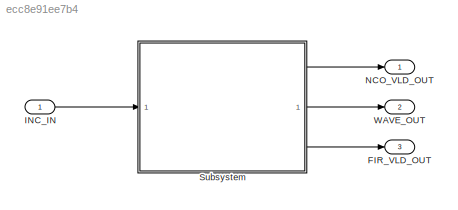
MODEL slx_ecc8e91ee7b4
KIND model
CONFIG AbsTol = auto
CONFIG EnableMultiTasking = off
CONFIG FixedStep = auto
CONFIG MaxStep = auto
CONFIG MinStep = auto
CONFIG RelTol = 1e-3
CONFIG SampleTimeConstraint = Unconstrained
CONFIG SolverName = VariableStepAuto
CONFIG StartTime = 0.0
CONFIG StopTime = 10.0
BLOCK [Outport] FIR_VLD_OUT
  Port = 3
  SampleTime = 0.001
  VectorParamsAs1DForOutWhenUnconnected = off
BLOCK [Inport] INC_IN
  OutDataTypeStr = uint32
  PortDimensions = 1
  SampleTime = 0.001
BLOCK [Outport] NCO_VLD_OUT
  SampleTime = 0.001
  VectorParamsAs1DForOutWhenUnconnected = off
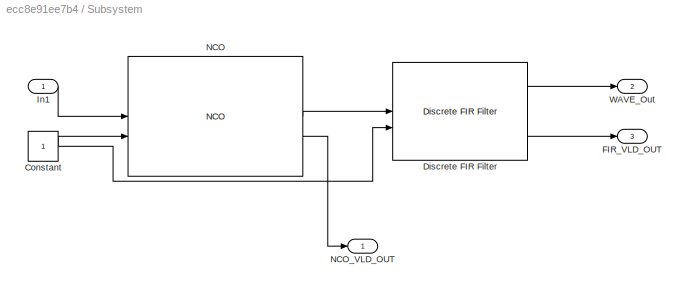
BLOCK [SubSystem] Subsystem
BLOCK [Constant] Subsystem/Constant
  OutDataTypeStr = boolean
  SampleTime = 0.001
BLOCK [Reference] Subsystem/Discrete FIR Filter  REF=dsphdlfiltering2/Discrete FIR Filter
  SourceBlock = dsphdlfiltering2/Discrete FIR Filter
  SourceType = Discrete FIR Filter
BLOCK [Outport] Subsystem/FIR_VLD_OUT
  Port = 3
  SampleTime = 0.001
  VectorParamsAs1DForOutWhenUnconnected = off
BLOCK [Inport] Subsystem/In1
  OutDataTypeStr = uint32
  PortDimensions = 1
  SampleTime = 0.001
BLOCK [Reference] Subsystem/NCO  REF=dsphdlsigops2/NCO
  LibrarySourceBlock = dsphdlsrcs2/NCO
  SourceBlock = dsphdlsigops2/NCO
  SourceType = NCO
BLOCK [Outport] Subsystem/NCO_VLD_OUT
  SampleTime = 0.001
  VectorParamsAs1DForOutWhenUnconnected = off
BLOCK [Outport] Subsystem/WAVE_Out
  Port = 2
  SampleTime = 0.001
  VectorParamsAs1DForOutWhenUnconnected = off
BLOCK [Outport] WAVE_OUT
  Port = 2
  SampleTime = 0.001
  VectorParamsAs1DForOutWhenUnconnected = off
LINE INC_IN:1 -> Subsystem:1
NET Subsystem/Constant:1 -> Subsystem/Discrete FIR Filter:2, Subsystem/NCO:2
LINE Subsystem/Discrete FIR Filter:1 -> Subsystem/WAVE_Out:1
LINE Subsystem/Discrete FIR Filter:2 -> Subsystem/FIR_VLD_OUT:1
LINE Subsystem/In1:1 -> Subsystem/NCO:1
LINE Subsystem/NCO:1 -> Subsystem/Discrete FIR Filter:1
LINE Subsystem/NCO:2 -> Subsystem/NCO_VLD_OUT:1
LINE Subsystem:1 -> NCO_VLD_OUT:1
LINE Subsystem:2 -> WAVE_OUT:1
LINE Subsystem:3 -> FIR_VLD_OUT:1
note: NET lines group one-source signal fan-out (src -> all destinations, sorted); 1:1 wires keep LINE
